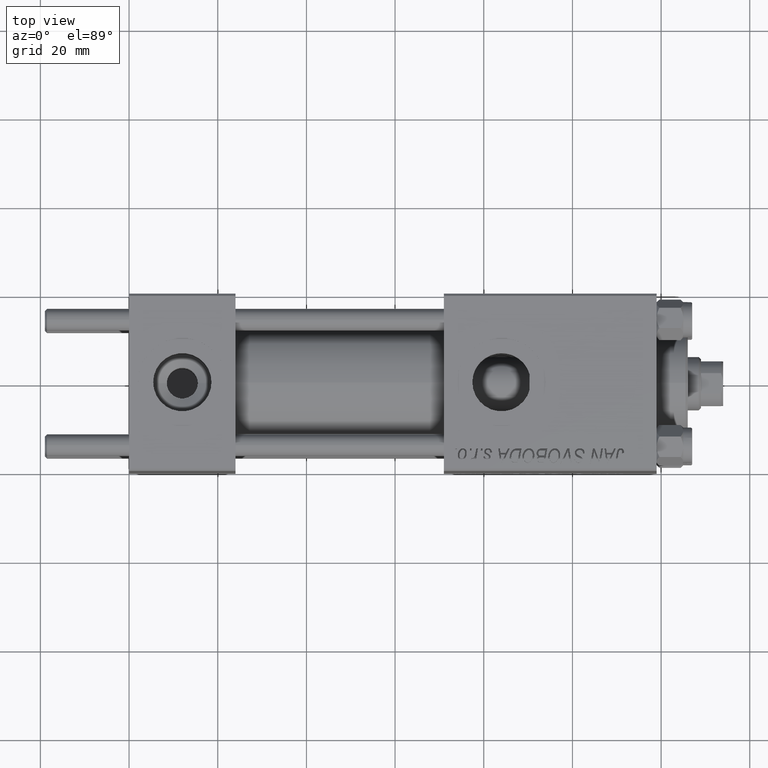
[diagram: clean part render]
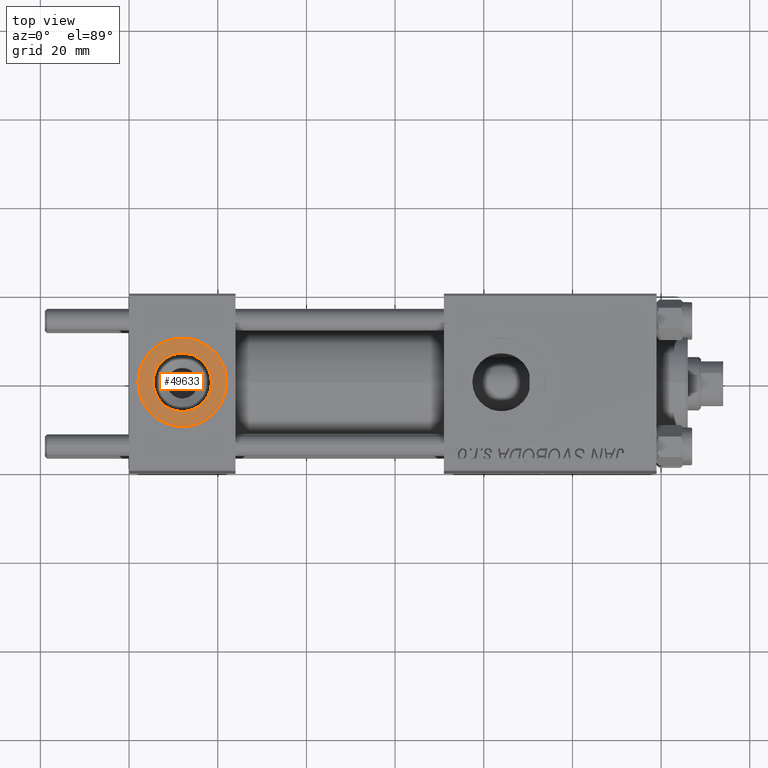
[diagram: same view with one face highlighted and labeled with its STEP entity id]
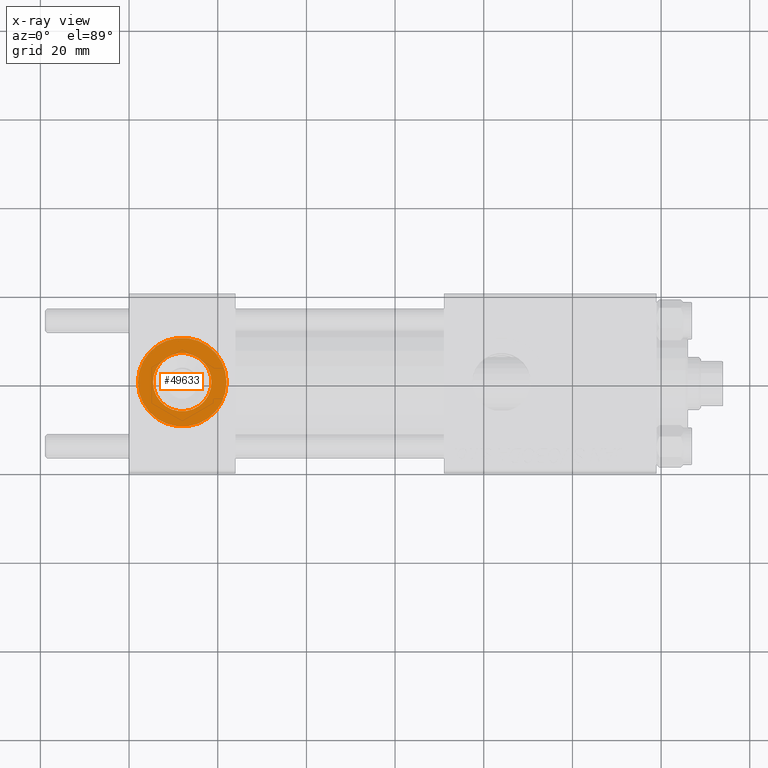
[diagram: x-ray of the same camera — body ghosted, the highlighted face saturated]
A machine part, top view. The second image highlights one B-rep face of the part: STEP entity #49633.
The next image is the same camera in x-ray: the body ghosted, the highlighted face saturated — about 0% of this face is hidden behind the body in this view.
In plain terms, the highlighted planar face has unit normal (0, 0, 1).
Its self-contained STEP definition (entity closure, byte-faithful):
#1550 = VERTEX_POINT ( 'NONE', #22476 ) ;
#1694 = CIRCLE ( 'NONE', #40277, 6.579999999999999183 ) ;
#1742 = VERTEX_POINT ( 'NONE', #27151 ) ;
#3238 = DIRECTION ( 'NONE',  ( 1.000000000000000000, 0.000000000000000000, 0.000000000000000000 ) ) ;
#3247 = DIRECTION ( 'NONE',  ( 1.000000000000000000, 0.000000000000000000, 0.000000000000000000 ) ) ;
#5711 = EDGE_CURVE ( 'NONE', #26297, #26463, #1694, .T. ) ;
#5955 = EDGE_CURVE ( 'NONE', #1550, #1742, #34385, .T. ) ;
#6267 = ORIENTED_EDGE ( 'NONE', *, *, #5955, .T. ) ;
#6775 = CARTESIAN_POINT ( 'NONE',  ( 5.420000000000000817, 8.058175938389596335E-16, 19.79999999999999716 ) ) ;
#7173 = DIRECTION ( 'NONE',  ( 0.000000000000000000, 0.000000000000000000, 1.000000000000000000 ) ) ;
#7440 = CARTESIAN_POINT ( 'NONE',  ( 12.00000000000000000, 1.540743955509788682E-30, 19.79999999999999716 ) ) ;
#10597 = CARTESIAN_POINT ( 'NONE',  ( 12.00000000000000000, 1.540743955509788682E-30, 19.79999999999999716 ) ) ;
#11720 = AXIS2_PLACEMENT_3D ( 'NONE', #10597, #42134, #18494 ) ;
#15641 = PLANE ( 'NONE',  #43300 ) ;
#18102 = EDGE_LOOP ( 'NONE', ( #24476, #6267 ) ) ;
#18494 = DIRECTION ( 'NONE',  ( 1.000000000000000000, 0.000000000000000000, 0.000000000000000000 ) ) ;
#19585 = FACE_OUTER_BOUND ( 'NONE', #18102, .T. ) ;
#19896 = CARTESIAN_POINT ( 'NONE',  ( 18.57999999999999829, 1.540743955509788682E-30, 19.79999999999999716 ) ) ;
#22476 = CARTESIAN_POINT ( 'NONE',  ( 2.000000000000003553, 1.224646799147354440E-15, 19.79999999999999716 ) ) ;
#23038 = ORIENTED_EDGE ( 'NONE', *, *, #50844, .F. ) ;
#24476 = ORIENTED_EDGE ( 'NONE', *, *, #38875, .T. ) ;
#26049 = CIRCLE ( 'NONE', #50369, 9.999999999999998224 ) ;
#26297 = VERTEX_POINT ( 'NONE', #6775 ) ;
#26463 = VERTEX_POINT ( 'NONE', #19896 ) ;
#26892 = DIRECTION ( 'NONE',  ( 0.000000000000000000, 0.000000000000000000, 1.000000000000000000 ) ) ;
#27146 = CARTESIAN_POINT ( 'NONE',  ( 12.00000000000000000, 1.540743955509788682E-30, 19.79999999999999716 ) ) ;
#27151 = CARTESIAN_POINT ( 'NONE',  ( 22.00000000000000000, 1.540743955509788682E-30, 19.79999999999999716 ) ) ;
#27448 = CARTESIAN_POINT ( 'NONE',  ( 12.00000000000000000, 1.540743955509788682E-30, 19.79999999999999716 ) ) ;
#28978 = ORIENTED_EDGE ( 'NONE', *, *, #5711, .F. ) ;
#31395 = CARTESIAN_POINT ( 'NONE',  ( 12.00000000000000000, 1.540743955509788682E-30, 19.79999999999999716 ) ) ;
#31396 = DIRECTION ( 'NONE',  ( 0.000000000000000000, 0.000000000000000000, 1.000000000000000000 ) ) ;
#31915 = DIRECTION ( 'NONE',  ( 0.000000000000000000, 0.000000000000000000, 1.000000000000000000 ) ) ;
#34385 = CIRCLE ( 'NONE', #11720, 9.999999999999998224 ) ;
#38875 = EDGE_CURVE ( 'NONE', #1742, #1550, #26049, .T. ) ;
#39553 = DIRECTION ( 'NONE',  ( 1.000000000000000000, 0.000000000000000000, 0.000000000000000000 ) ) ;
#40277 = AXIS2_PLACEMENT_3D ( 'NONE', #27448, #31396, #39553 ) ;
#40797 = CIRCLE ( 'NONE', #47505, 6.579999999999999183 ) ;
#42134 = DIRECTION ( 'NONE',  ( 0.000000000000000000, 0.000000000000000000, 1.000000000000000000 ) ) ;
#43300 = AXIS2_PLACEMENT_3D ( 'NONE', #31395, #31915, #48202 ) ;
#47505 = AXIS2_PLACEMENT_3D ( 'NONE', #7440, #7173, #3238 ) ;
#47688 = FACE_BOUND ( 'NONE', #48879, .T. ) ;
#48202 = DIRECTION ( 'NONE',  ( 1.000000000000000000, 0.000000000000000000, -0.000000000000000000 ) ) ;
#48879 = EDGE_LOOP ( 'NONE', ( #23038, #28978 ) ) ;
#49633 = ADVANCED_FACE ( 'NONE', ( #47688, #19585 ), #15641, .T. ) ;
#50369 = AXIS2_PLACEMENT_3D ( 'NONE', #27146, #26892, #3247 ) ;
#50844 = EDGE_CURVE ( 'NONE', #26463, #26297, #40797, .T. ) ;